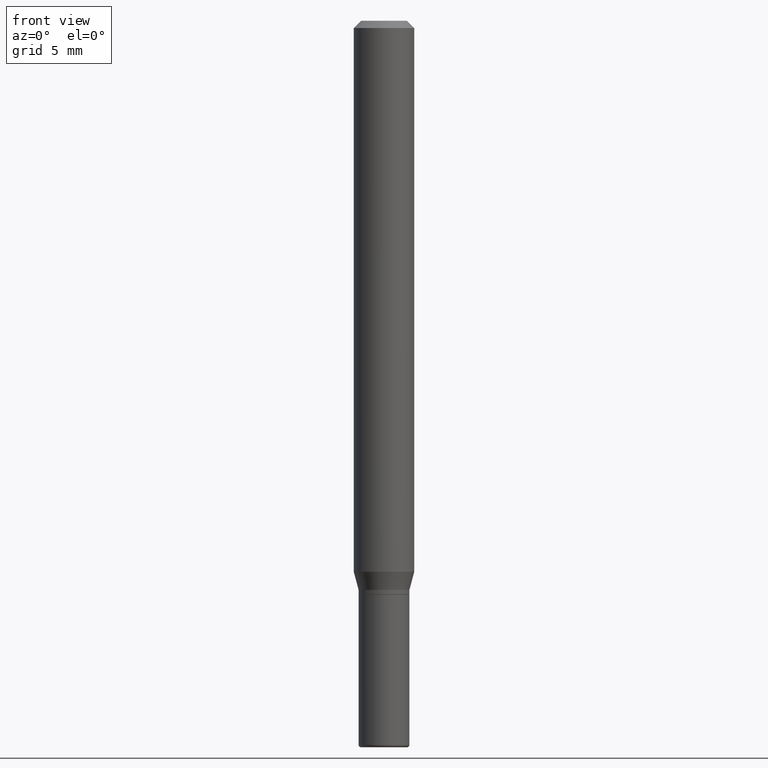
[diagram: clean part render]
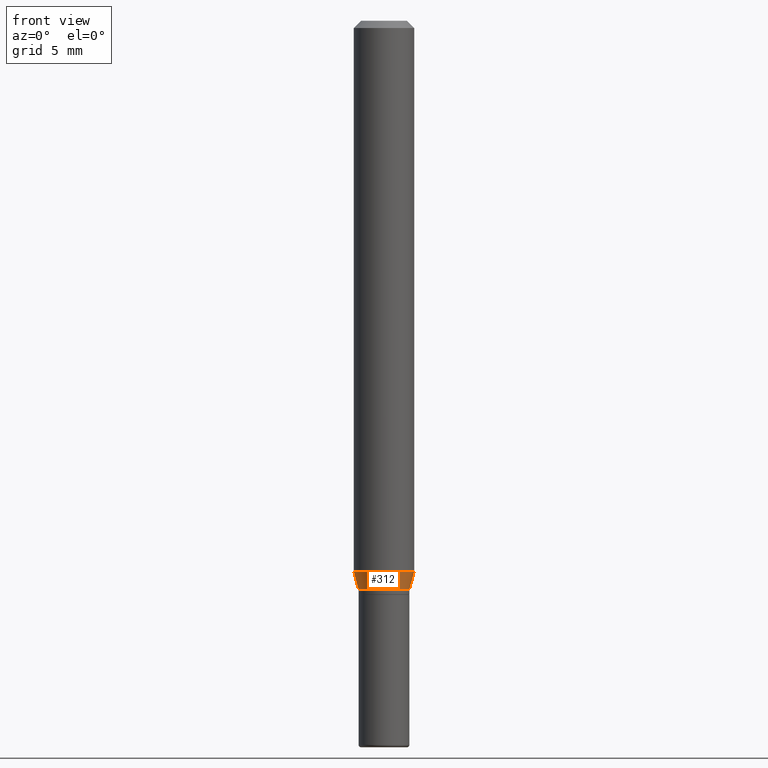
[diagram: same view with one face highlighted and labeled with its STEP entity id]
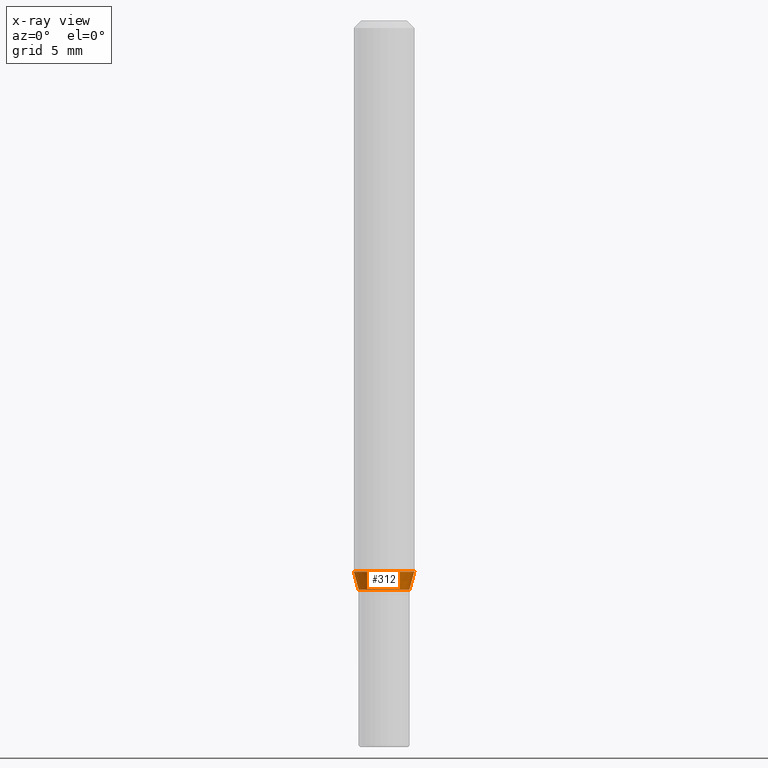
[diagram: x-ray of the same camera — body ghosted, the highlighted face saturated]
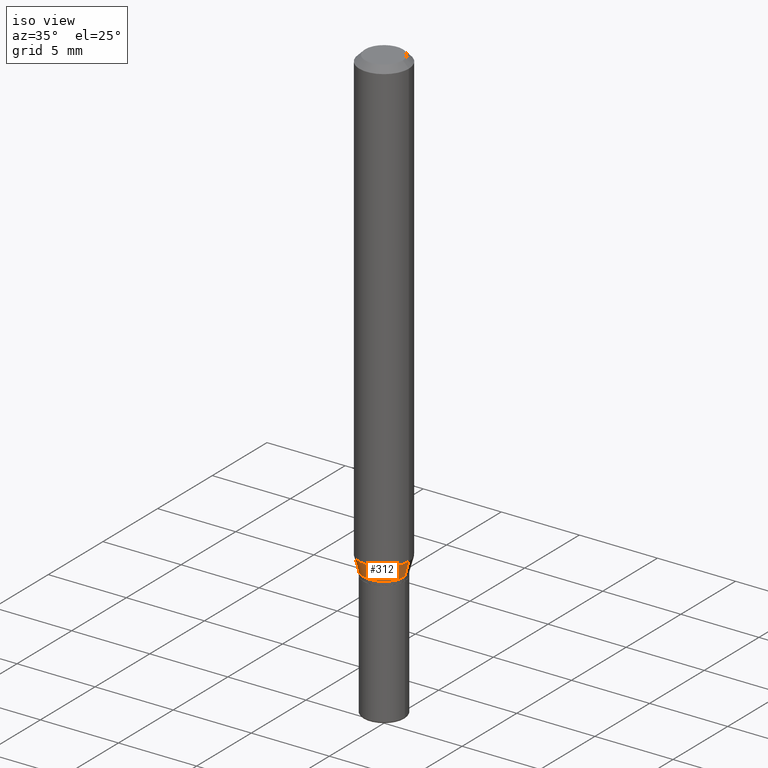
[diagram: same view with one face highlighted and labeled with its STEP entity id]
A machine part, front view. The second image highlights one B-rep face of the part: STEP entity #312.
The next image is the same camera in x-ray: the body ghosted, the highlighted face saturated — about 0% of this face is hidden behind the body in this view.
A second angle (iso view) of the same face is appended — the face is thin or edge-on in the first view.
In plain terms, the highlighted conical surface has half-angle 15 deg.
Its self-contained STEP definition (entity closure, byte-faithful):
#10 = DIRECTION ( 'NONE',  ( 0.2588190451025205729, 1.565188264969628081E-15, 0.9659258262890684232 ) ) ;
#49 = VERTEX_POINT ( 'NONE', #369 ) ;
#57 = DIRECTION ( 'NONE',  ( -0.2588190451025205729, 5.211531920934545520E-15, 0.9659258262890684232 ) ) ;
#66 = DIRECTION ( 'NONE',  ( -2.445468806185136597E-29, 3.491481338843145583E-15, 1.000000000000000000 ) ) ;
#68 = VERTEX_POINT ( 'NONE', #134 ) ;
#76 = CARTESIAN_POINT ( 'NONE',  ( 0.05250000000000007438, -4.469096113719226630E-15, -1.175000000000000488 ) ) ;
#113 = CARTESIAN_POINT ( 'NONE',  ( -0.06250000000000000000, -3.528097505788223835E-15, -1.137679491924311836 ) ) ;
#115 = CARTESIAN_POINT ( 'NONE',  ( -0.05250000000000007438, -3.729455636866644935E-15, -1.175000000000000488 ) ) ;
#118 = AXIS2_PLACEMENT_3D ( 'NONE', #206, #66, #388 ) ;
#120 = ORIENTED_EDGE ( 'NONE', *, *, #307, .T. ) ;
#133 = CARTESIAN_POINT ( 'NONE',  ( 2.873425847267536398E-29, -4.102490573140697470E-15, -1.175000000000000488 ) ) ;
#134 = CARTESIAN_POINT ( 'NONE',  ( -0.05250000000000007438, -3.628776571327434780E-15, -1.175000000000000488 ) ) ;
#135 = ORIENTED_EDGE ( 'NONE', *, *, #334, .T. ) ;
#181 = ORIENTED_EDGE ( 'NONE', *, *, #234, .F. ) ;
#188 = CIRCLE ( 'NONE', #200, 0.05250000000000007438 ) ;
#195 = DIRECTION ( 'NONE',  ( -2.445468806185136597E-29, 3.491481338843145583E-15, 1.000000000000000000 ) ) ;
#200 = AXIS2_PLACEMENT_3D ( 'NONE', #252, #195, #457 ) ;
#206 = CARTESIAN_POINT ( 'NONE',  ( 2.782159708937459794E-29, -3.972186715638285663E-15, -1.137679491924311836 ) ) ;
#234 = EDGE_CURVE ( 'NONE', #251, #49, #436, .T. ) ;
#243 = LINE ( 'NONE', #489, #424 ) ;
#251 = VERTEX_POINT ( 'NONE', #113 ) ;
#252 = CARTESIAN_POINT ( 'NONE',  ( 2.873425847267536398E-29, -4.102490573140697470E-15, -1.175000000000000488 ) ) ;
#275 = EDGE_LOOP ( 'NONE', ( #435, #135, #120, #181 ) ) ;
#307 = EDGE_CURVE ( 'NONE', #404, #49, #243, .T. ) ;
#312 = ADVANCED_FACE ( 'NONE', ( #438 ), #429, .T. ) ;
#318 = DIRECTION ( 'NONE',  ( -2.445468806185136597E-29, 3.491481338843145583E-15, 1.000000000000000000 ) ) ;
#334 = EDGE_CURVE ( 'NONE', #68, #404, #188, .T. ) ;
#338 = AXIS2_PLACEMENT_3D ( 'NONE', #133, #318, #485 ) ;
#369 = CARTESIAN_POINT ( 'NONE',  ( 0.06250000000000000000, -4.408621882993678121E-15, -1.137679491924311836 ) ) ;
#388 = DIRECTION ( 'NONE',  ( 1.000000000000000000, -6.982962677686270655E-15, 0.000000000000000000 ) ) ;
#399 = EDGE_CURVE ( 'NONE', #68, #251, #469, .T. ) ;
#404 = VERTEX_POINT ( 'NONE', #76 ) ;
#418 = VECTOR ( 'NONE', #57, 39.37007874015748143 ) ;
#424 = VECTOR ( 'NONE', #10, 39.37007874015748143 ) ;
#429 = CONICAL_SURFACE ( 'NONE', #338, 0.05250000000000007438, 0.2617993877991492413 ) ;
#435 = ORIENTED_EDGE ( 'NONE', *, *, #399, .F. ) ;
#436 = CIRCLE ( 'NONE', #118, 0.06250000000000000000 ) ;
#438 = FACE_OUTER_BOUND ( 'NONE', #275, .T. ) ;
#457 = DIRECTION ( 'NONE',  ( 1.000000000000000000, -6.982962677686258033E-15, 0.000000000000000000 ) ) ;
#469 = LINE ( 'NONE', #115, #418 ) ;
#485 = DIRECTION ( 'NONE',  ( 1.000000000000000000, -6.982962677686258033E-15, 0.000000000000000000 ) ) ;
#489 = CARTESIAN_POINT ( 'NONE',  ( 0.05250000000000007438, -4.469096113719226630E-15, -1.175000000000000488 ) ) ;